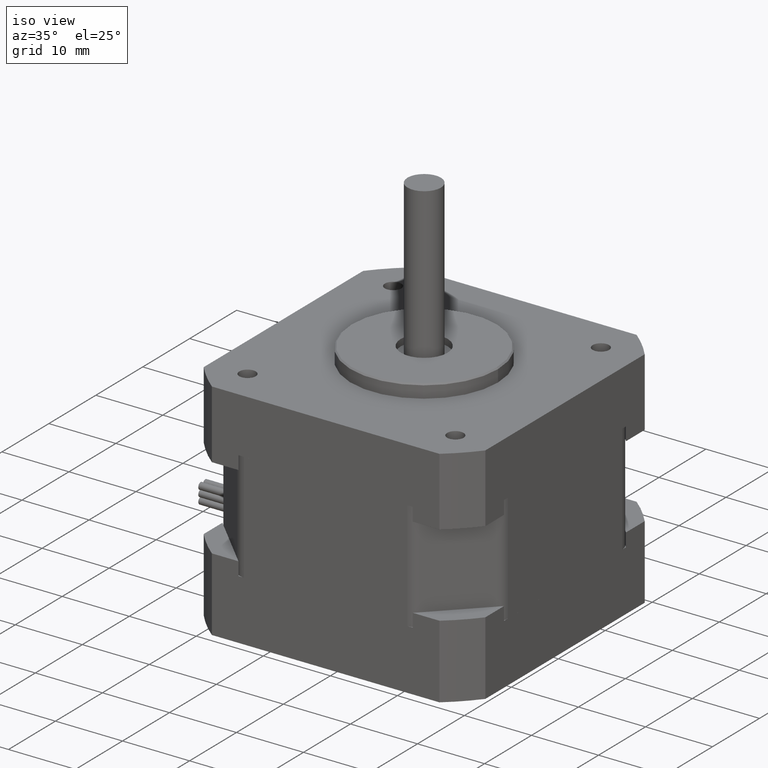
[diagram: clean part render]
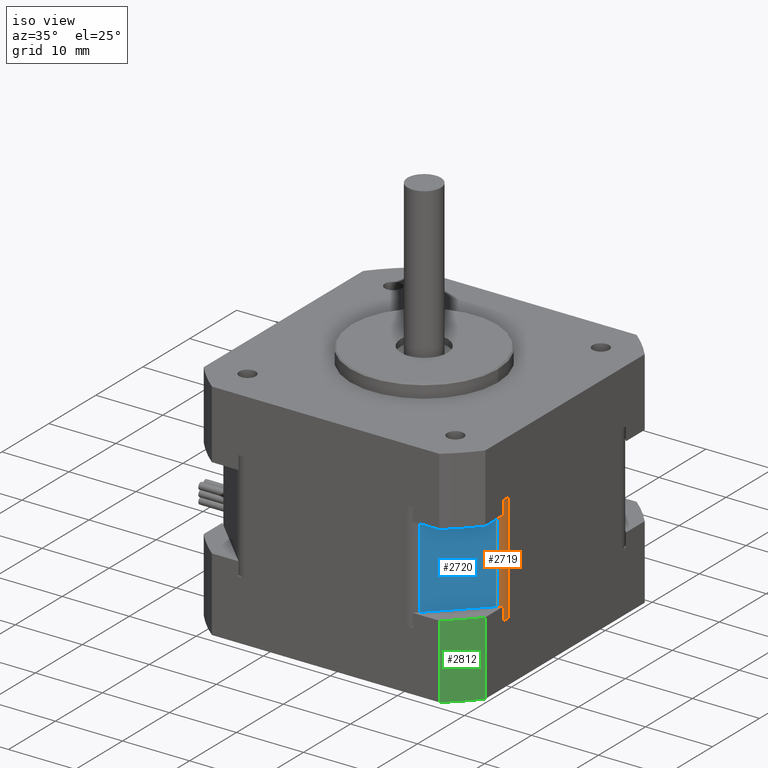
[diagram: same view with three faces highlighted in distinct colors, each labeled with its STEP entity id]
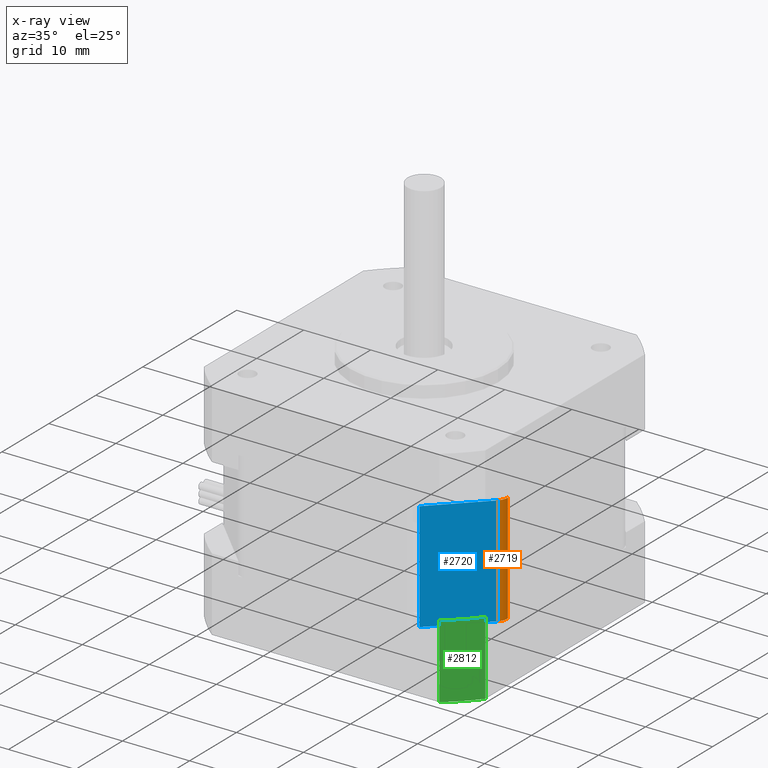
[diagram: x-ray of the same camera — body ghosted, the three highlighted faces saturated]
A machine part, iso view with three faces highlighted in distinct colors.
The next image is the same camera in x-ray (body ghosted, the three faces saturated) — at least one of them is partly hidden behind the body in this view.
Their STEP definitions:

[orange] entity #2719 — the highlighted cylindrical surface (edge-blend (fillet) strip) has radius 2 mm, axis along (0, 0, 1).
#237=FACE_OUTER_BOUND('',#429,.T.);
#429=EDGE_LOOP('',(#1803,#1804,#1805,#1806));
#700=LINE('',#4304,#858);
#701=LINE('',#4305,#859);
#858=VECTOR('',#3380,10.);
#859=VECTOR('',#3381,10.);
#995=CIRCLE('',#2922,2.);
#1004=CIRCLE('',#2942,2.);
#1173=VERTEX_POINT('',#4241);
#1174=VERTEX_POINT('',#4243);
#1192=VERTEX_POINT('',#4301);
#1193=VERTEX_POINT('',#4302);
#1407=EDGE_CURVE('',#1174,#1173,#995,.T.);
#1436=EDGE_CURVE('',#1192,#1193,#1004,.T.);
#1437=EDGE_CURVE('',#1193,#1174,#700,.T.);
#1438=EDGE_CURVE('',#1173,#1192,#701,.T.);
#1803=ORIENTED_EDGE('',*,*,#1436,.T.);
#1804=ORIENTED_EDGE('',*,*,#1437,.T.);
#1805=ORIENTED_EDGE('',*,*,#1407,.T.);
#1806=ORIENTED_EDGE('',*,*,#1438,.T.);
#2471=CYLINDRICAL_SURFACE('',#2941,2.);
#2719=ADVANCED_FACE('',(#237),#2471,.T.);
#2922=AXIS2_PLACEMENT_3D('',#4244,#3318,#3319);
#2941=AXIS2_PLACEMENT_3D('',#4300,#3376,#3377);
#2942=AXIS2_PLACEMENT_3D('',#4303,#3378,#3379);
#3318=DIRECTION('center_axis',(0.,0.,1.));
#3319=DIRECTION('ref_axis',(0.923879532511287,-0.38268343236509,0.));
#3376=DIRECTION('center_axis',(0.,0.,1.));
#3377=DIRECTION('ref_axis',(0.923879532511287,-0.38268343236509,0.));
#3378=DIRECTION('center_axis',(0.,0.,-1.));
#3379=DIRECTION('ref_axis',(0.923879532511287,-0.38268343236509,0.));
#3380=DIRECTION('',(0.,0.,-1.));
#3381=DIRECTION('',(0.,0.,1.));
#4241=CARTESIAN_POINT('',(21.,-12.1715728752538,-8.15));
#4243=CARTESIAN_POINT('',(20.4142135623731,-13.5857864376269,-8.15));
#4244=CARTESIAN_POINT('Origin',(19.,-12.1715728752538,-8.15));
#4300=CARTESIAN_POINT('Origin',(19.,-12.1715728752538,0.));
#4301=CARTESIAN_POINT('',(21.,-12.1715728752538,8.15));
#4302=CARTESIAN_POINT('',(20.4142135623731,-13.5857864376269,8.15));
#4303=CARTESIAN_POINT('Origin',(19.,-12.1715728752538,8.15));
#4304=CARTESIAN_POINT('',(20.4142135623731,-13.5857864376269,0.));
#4305=CARTESIAN_POINT('',(21.,-12.1715728752538,0.));

[blue] entity #2720 — the highlighted planar face has unit normal (0.7071, -0.7071, 0).
#134=PLANE('',#2943);
#238=FACE_OUTER_BOUND('',#430,.T.);
#430=EDGE_LOOP('',(#1807,#1808,#1809,#1810));
#680=LINE('',#4246,#838);
#700=LINE('',#4304,#858);
#702=LINE('',#4308,#860);
#703=LINE('',#4309,#861);
#838=VECTOR('',#3320,10.);
#858=VECTOR('',#3380,10.);
#860=VECTOR('',#3384,10.);
#861=VECTOR('',#3385,10.);
#1174=VERTEX_POINT('',#4243);
#1175=VERTEX_POINT('',#4245);
#1193=VERTEX_POINT('',#4302);
#1194=VERTEX_POINT('',#4307);
#1408=EDGE_CURVE('',#1175,#1174,#680,.T.);
#1437=EDGE_CURVE('',#1193,#1174,#700,.T.);
#1439=EDGE_CURVE('',#1193,#1194,#702,.T.);
#1440=EDGE_CURVE('',#1175,#1194,#703,.T.);
#1807=ORIENTED_EDGE('',*,*,#1437,.F.);
#1808=ORIENTED_EDGE('',*,*,#1439,.T.);
#1809=ORIENTED_EDGE('',*,*,#1440,.F.);
#1810=ORIENTED_EDGE('',*,*,#1408,.T.);
#2720=ADVANCED_FACE('',(#238),#134,.T.);
#2943=AXIS2_PLACEMENT_3D('',#4306,#3382,#3383);
#3320=DIRECTION('',(0.707106781186547,0.707106781186548,0.));
#3380=DIRECTION('',(0.,0.,-1.));
#3382=DIRECTION('center_axis',(0.707106781186548,-0.707106781186547,0.));
#3383=DIRECTION('ref_axis',(0.,0.,-1.));
#3384=DIRECTION('',(-0.707106781186547,-0.707106781186548,0.));
#3385=DIRECTION('',(0.,0.,1.));
#4243=CARTESIAN_POINT('',(20.4142135623731,-13.5857864376269,-8.15));
#4245=CARTESIAN_POINT('',(13.5857864376269,-20.4142135623731,-8.15));
#4246=CARTESIAN_POINT('',(13.,-21.,-8.15));
#4302=CARTESIAN_POINT('',(20.4142135623731,-13.5857864376269,8.15));
#4304=CARTESIAN_POINT('',(20.4142135623731,-13.5857864376269,0.));
#4306=CARTESIAN_POINT('Origin',(21.,-13.,0.));
#4307=CARTESIAN_POINT('',(13.5857864376269,-20.4142135623731,8.15));
#4308=CARTESIAN_POINT('',(13.,-21.,8.15));
#4309=CARTESIAN_POINT('',(13.5857864376269,-20.4142135623731,0.));

[green] entity #2812 — the highlighted cylindrical surface (partial cylindrical patch) has radius 27 mm, axis along (0, 0, -1).
#330=FACE_OUTER_BOUND('',#557,.T.);
#557=EDGE_LOOP('',(#2168,#2169,#2170,#2171));
#784=LINE('',#4624,#942);
#792=LINE('',#4681,#950);
#942=VECTOR('',#3742,10.);
#950=VECTOR('',#3814,10.);
#1066=CIRCLE('',#3076,27.);
#1084=CIRCLE('',#3115,27.);
#1285=VERTEX_POINT('',#4607);
#1286=VERTEX_POINT('',#4609);
#1290=VERTEX_POINT('',#4623);
#1307=VERTEX_POINT('',#4679);
#1578=EDGE_CURVE('',#1285,#1286,#1066,.T.);
#1585=EDGE_CURVE('',#1286,#1290,#784,.T.);
#1608=EDGE_CURVE('',#1285,#1307,#792,.T.);
#1609=EDGE_CURVE('',#1307,#1290,#1084,.T.);
#2168=ORIENTED_EDGE('',*,*,#1609,.T.);
#2169=ORIENTED_EDGE('',*,*,#1585,.F.);
#2170=ORIENTED_EDGE('',*,*,#1578,.F.);
#2171=ORIENTED_EDGE('',*,*,#1608,.T.);
#2511=CYLINDRICAL_SURFACE('',#3114,27.);
#2812=ADVANCED_FACE('',(#330),#2511,.T.);
#3076=AXIS2_PLACEMENT_3D('',#4610,#3726,#3727);
#3114=AXIS2_PLACEMENT_3D('',#4682,#3815,#3816);
#3115=AXIS2_PLACEMENT_3D('',#4683,#3817,#3818);
#3726=DIRECTION('center_axis',(0.,0.,1.));
#3727=DIRECTION('ref_axis',(-0.777777777777779,0.628539361054708,0.));
#3742=DIRECTION('',(0.,0.,-1.));
#3814=DIRECTION('',(0.,0.,-1.));
#3815=DIRECTION('center_axis',(0.,0.,-1.));
#3816=DIRECTION('ref_axis',(-0.777777777777779,0.628539361054708,0.));
#3817=DIRECTION('center_axis',(0.,0.,1.));
#3818=DIRECTION('ref_axis',(-0.777777777777779,0.628539361054708,0.));
#4607=CARTESIAN_POINT('',(16.9705627484772,-21.,-6.15));
#4609=CARTESIAN_POINT('',(21.,-16.9705627484771,-6.15));
#4610=CARTESIAN_POINT('Origin',(-3.76583300298083E-15,6.38378239159465E-15,
-6.15));
#4623=CARTESIAN_POINT('',(21.,-16.9705627484771,-17.15));
#4624=CARTESIAN_POINT('',(21.,-16.9705627484771,-6.15));
#4679=CARTESIAN_POINT('',(16.9705627484772,-21.,-17.15));
#4681=CARTESIAN_POINT('',(16.9705627484772,-21.,-6.15));
#4682=CARTESIAN_POINT('Origin',(-3.76583300298083E-15,6.38378239159465E-15,
-6.15));
#4683=CARTESIAN_POINT('Origin',(-3.76583300298083E-15,6.38378239159465E-15,
-17.15));